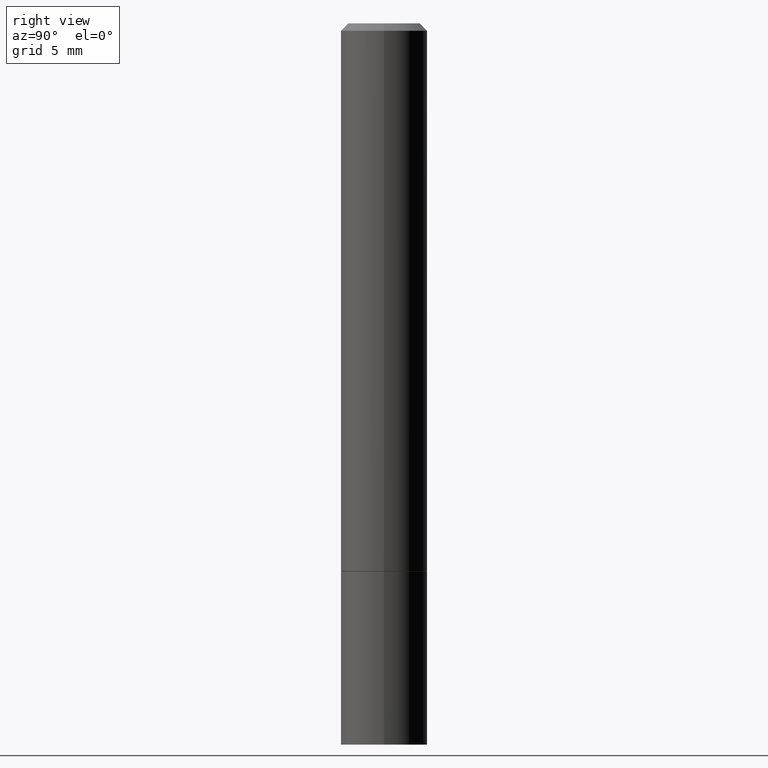
[diagram: clean part render]
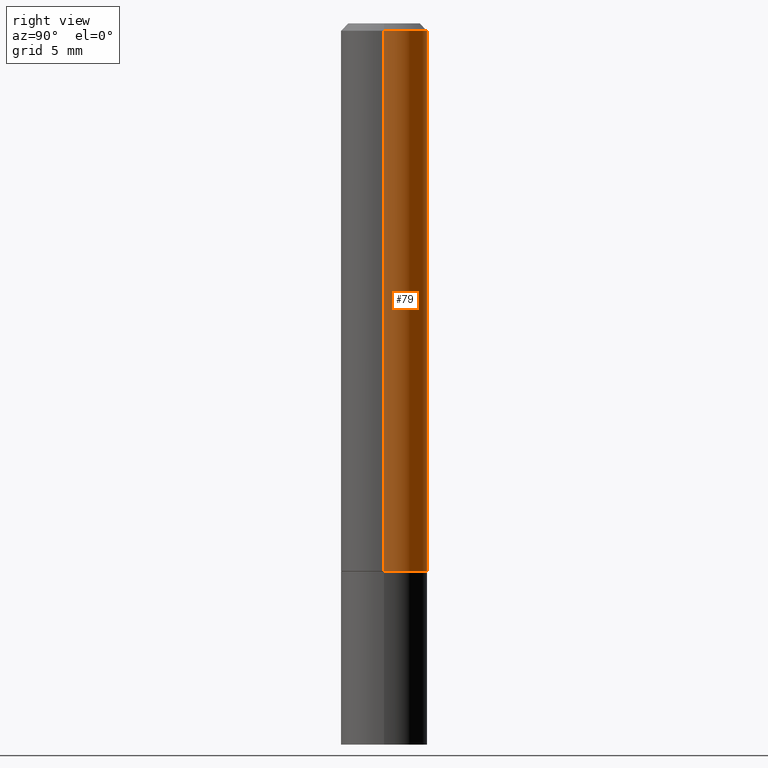
[diagram: same view with one face highlighted and labeled with its STEP entity id]
A machine part, right view. The second image highlights one B-rep face of the part: STEP entity #79.
In plain terms, the highlighted cylindrical surface (partial cylindrical patch) has radius 2.9997 mm, axis along (-0, 0, 1).
Its self-contained STEP definition (entity closure, byte-faithful):
#11 = DIRECTION ( 'NONE',  ( 1.000000000000000000, -6.982962677686266711E-15, 4.876176775795935232E-29 ) ) ;
#12 = FACE_OUTER_BOUND ( 'NONE', #168, .T. ) ;
#27 = EDGE_CURVE ( 'NONE', #117, #83, #122, .T. ) ;
#71 = AXIS2_PLACEMENT_3D ( 'NONE', #330, #324, #94 ) ;
#79 = ADVANCED_FACE ( 'NONE', ( #12 ), #95, .T. ) ;
#83 = VERTEX_POINT ( 'NONE', #153 ) ;
#94 = DIRECTION ( 'NONE',  ( 1.000000000000000000, -6.982962677686265133E-15, 0.000000000000000000 ) ) ;
#95 = CYLINDRICAL_SURFACE ( 'NONE', #251, 0.1180999999999998995 ) ;
#104 = DIRECTION ( 'NONE',  ( -2.445468806185136877E-29, 3.491481338843145188E-15, 1.000000000000000000 ) ) ;
#109 = DIRECTION ( 'NONE',  ( 1.000000000000000000, -6.982962677686266711E-15, 0.000000000000000000 ) ) ;
#117 = VERTEX_POINT ( 'NONE', #234 ) ;
#122 = CIRCLE ( 'NONE', #71, 0.1180999999999999966 ) ;
#134 = CARTESIAN_POINT ( 'NONE',  ( 0.1180999999999998995, -8.246878922347473751E-16, 5.758764772214994835E-30 ) ) ;
#141 = ORIENTED_EDGE ( 'NONE', *, *, #237, .F. ) ;
#142 = VERTEX_POINT ( 'NONE', #349 ) ;
#143 = AXIS2_PLACEMENT_3D ( 'NONE', #313, #189, #109 ) ;
#153 = CARTESIAN_POINT ( 'NONE',  ( -0.1180999999999999966, -1.805820717307944806E-15, -1.495099999999999874 ) ) ;
#159 = LINE ( 'NONE', #134, #355 ) ;
#168 = EDGE_LOOP ( 'NONE', ( #322, #320, #170, #141 ) ) ;
#170 = ORIENTED_EDGE ( 'NONE', *, *, #232, .F. ) ;
#189 = DIRECTION ( 'NONE',  ( -2.445468806185136597E-29, 3.491481338843145583E-15, 1.000000000000000000 ) ) ;
#199 = VERTEX_POINT ( 'NONE', #274 ) ;
#232 = EDGE_CURVE ( 'NONE', #142, #199, #314, .T. ) ;
#234 = CARTESIAN_POINT ( 'NONE',  ( 0.1180999999999999966, -6.044801641939134915E-15, -1.495099999999999874 ) ) ;
#235 = CARTESIAN_POINT ( 'NONE',  ( 0.000000000000000000, 0.000000000000000000, 0.000000000000000000 ) ) ;
#237 = EDGE_CURVE ( 'NONE', #117, #142, #159, .T. ) ;
#246 = LINE ( 'NONE', #361, #297 ) ;
#251 = AXIS2_PLACEMENT_3D ( 'NONE', #235, #295, #11 ) ;
#274 = CARTESIAN_POINT ( 'NONE',  ( -0.1180999999999997746, 7.548582654578833867E-16, -0.02000000000000003858 ) ) ;
#295 = DIRECTION ( 'NONE',  ( -2.445468806185136597E-29, 3.491481338843145583E-15, 1.000000000000000000 ) ) ;
#297 = VECTOR ( 'NONE', #335, 39.37007874015748143 ) ;
#313 = CARTESIAN_POINT ( 'NONE',  ( 4.890937612370282792E-31, -6.982962677686303935E-17, -0.02000000000000003858 ) ) ;
#314 = CIRCLE ( 'NONE', #143, 0.1180999999999997746 ) ;
#320 = ORIENTED_EDGE ( 'NONE', *, *, #337, .T. ) ;
#322 = ORIENTED_EDGE ( 'NONE', *, *, #27, .T. ) ;
#324 = DIRECTION ( 'NONE',  ( -2.445468806185136597E-29, 3.491481338843145583E-15, 1.000000000000000000 ) ) ;
#330 = CARTESIAN_POINT ( 'NONE',  ( 3.656220412127397346E-29, -5.220113749704386653E-15, -1.495099999999999874 ) ) ;
#335 = DIRECTION ( 'NONE',  ( -2.445468806185136877E-29, 3.491481338843145188E-15, 1.000000000000000000 ) ) ;
#337 = EDGE_CURVE ( 'NONE', #83, #199, #246, .T. ) ;
#349 = CARTESIAN_POINT ( 'NONE',  ( 0.1180999999999997746, -8.800544403136793583E-16, -0.02000000000000003858 ) ) ;
#355 = VECTOR ( 'NONE', #104, 39.37007874015748143 ) ;
#361 = CARTESIAN_POINT ( 'NONE',  ( -0.1180999999999998995, 8.391509709326776054E-16, -5.809262341591038879E-30 ) ) ;